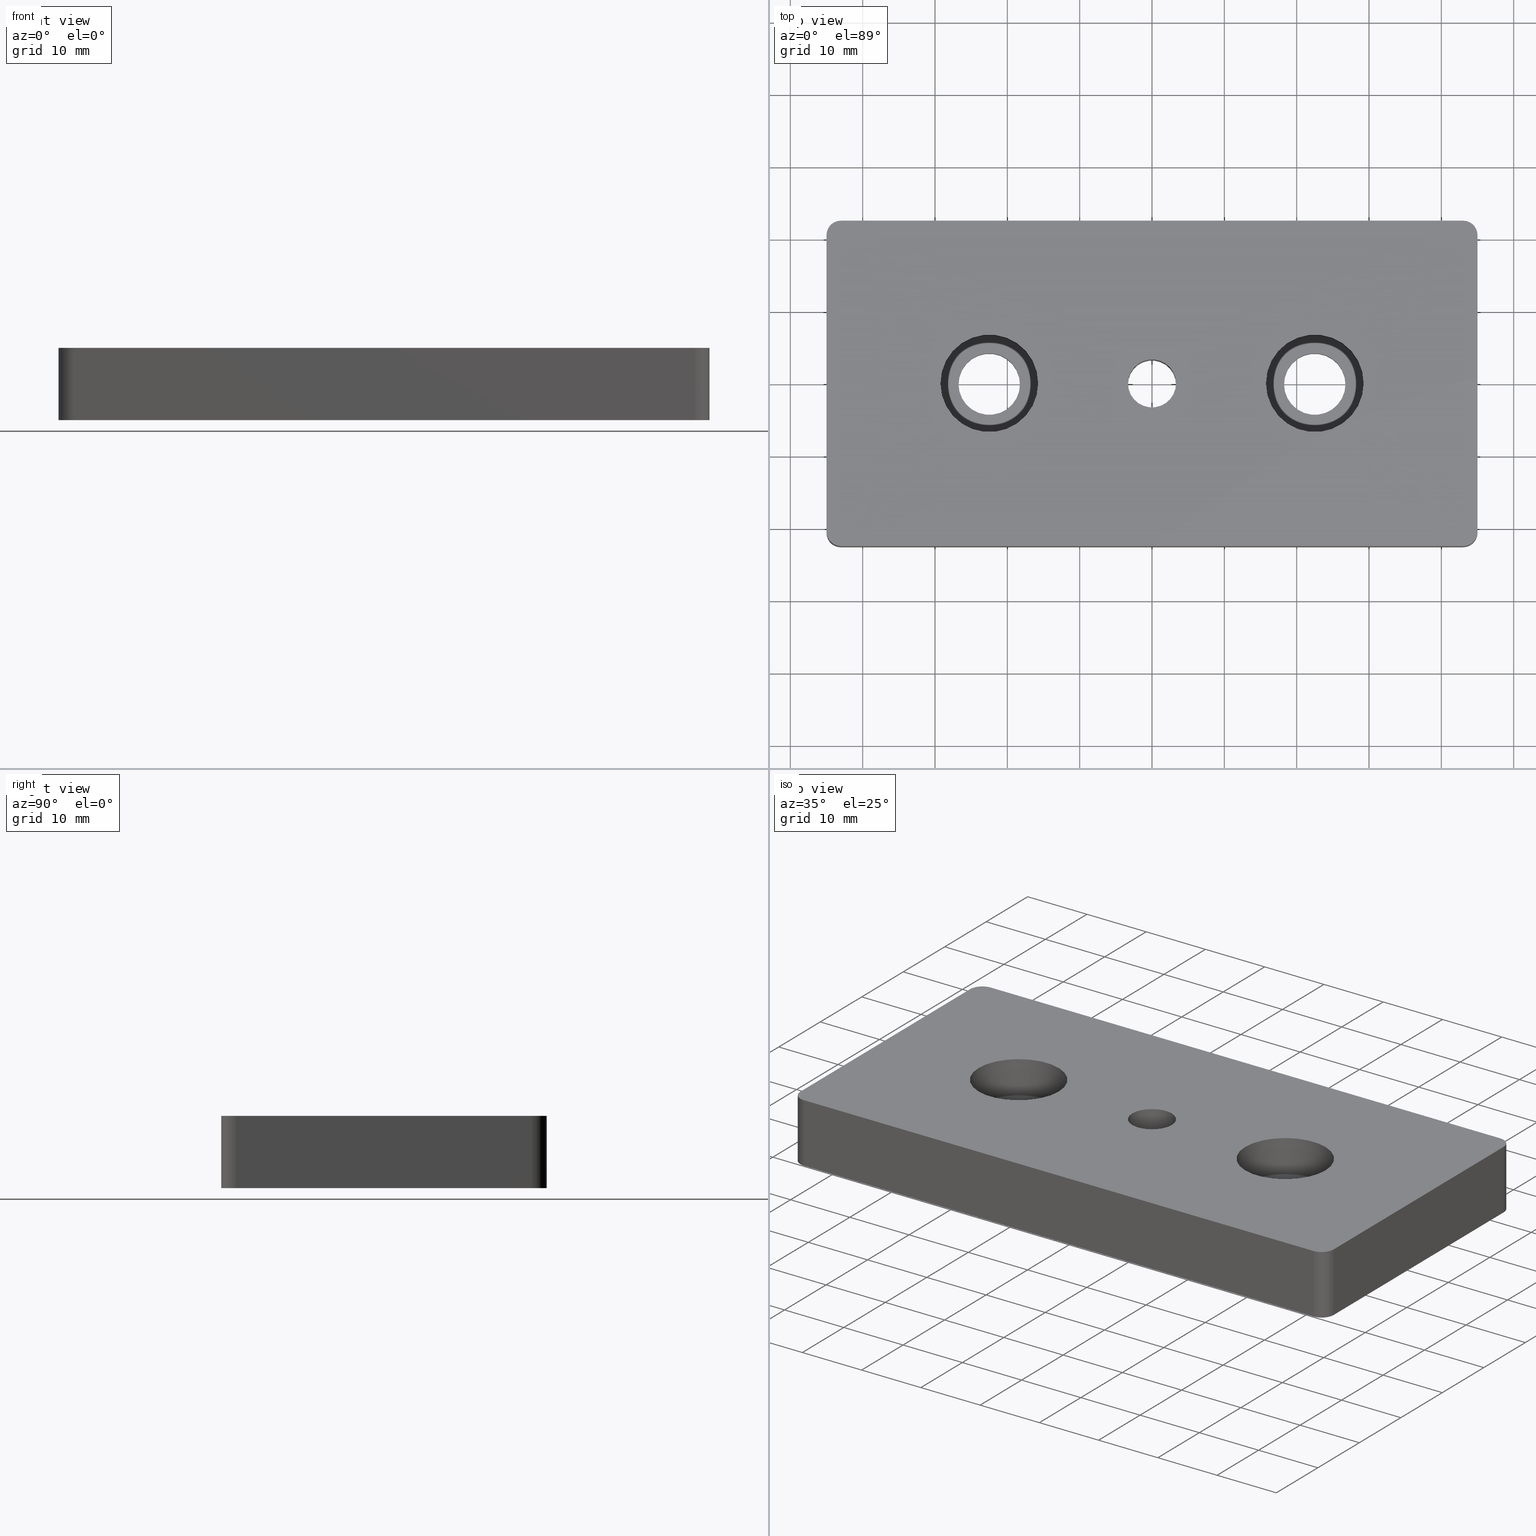
[diagram: canonical four-view strip — front | top / right | iso, engineering-drawing reading convention]
A machine part, canonical four-view strip (front | top / right | iso — engineering-drawing reading convention). The complete STEP part file that produces these views, byte-faithful:
ISO-10303-21;
HEADER;
/* Generated by software containing ST-Developer
 * from STEP Tools, Inc. (www.steptools.com) 
 */

FILE_DESCRIPTION(
/* description */ ('PIASTRA FISS. PIEDI M8 45X90'),
/* implementation_level */ '2;1');

FILE_NAME(
/* name */ 
'Q:\\Catalogo\\2_Accessori Dierre\\Per Download Web e catalogo cartace
o\\CATALOGO PIEDI E SOSTEGNI\\PAGINA 45\\DPSXX0001722.stp',
/* time_stamp */ '2018-11-09T11:26:52+01:00',
/* author */ ('fzagni'),
/* organization */ (''),
/* preprocessor_version */ 'ST-DEVELOPER v16.1',
/* originating_system */ 'Autodesk Inventor 2016',
/* authorisation */ '');

FILE_SCHEMA (('AUTOMOTIVE_DESIGN { 1 0 10303 214 3 1 1 }'));
ENDSEC;

DATA;
#10=MECHANICAL_DESIGN_GEOMETRIC_PRESENTATION_REPRESENTATION('',(#14,#15),
#494);
#11=SHAPE_REPRESENTATION_RELATIONSHIP('SRR','None',#503,#12);
#12=ADVANCED_BREP_SHAPE_REPRESENTATION('',(#13),#493);
#13=MANIFOLD_SOLID_BREP('Solido1',#288);
#14=STYLED_ITEM('',(#513),#287);
#15=STYLED_ITEM('',(#512),#13);
#16=LINE('',#446,#32);
#17=LINE('',#449,#33);
#18=LINE('',#452,#34);
#19=LINE('',#456,#35);
#20=LINE('',#460,#36);
#21=LINE('',#463,#37);
#22=LINE('',#466,#38);
#23=LINE('',#467,#39);
#24=LINE('',#471,#40);
#25=LINE('',#476,#41);
#26=LINE('',#477,#42);
#27=LINE('',#480,#43);
#28=LINE('',#481,#44);
#29=LINE('',#485,#45);
#30=LINE('',#487,#46);
#31=LINE('',#489,#47);
#32=VECTOR('',#365,10.);
#33=VECTOR('',#368,10.);
#34=VECTOR('',#371,41.);
#35=VECTOR('',#374,86.);
#36=VECTOR('',#377,41.);
#37=VECTOR('',#380,86.);
#38=VECTOR('',#383,41.);
#39=VECTOR('',#384,10.);
#40=VECTOR('',#389,10.);
#41=VECTOR('',#394,10.);
#42=VECTOR('',#395,10.);
#43=VECTOR('',#398,10.);
#44=VECTOR('',#399,41.);
#45=VECTOR('',#404,10.);
#46=VECTOR('',#407,86.);
#47=VECTOR('',#410,86.);
#48=PLANE('',#293);
#49=PLANE('',#300);
#50=PLANE('',#310);
#51=PLANE('',#314);
#52=PLANE('',#319);
#53=PLANE('',#322);
#54=PLANE('',#323);
#55=PLANE('',#324);
#56=FACE_BOUND('',#87,.T.);
#57=FACE_BOUND('',#89,.T.);
#58=FACE_BOUND('',#91,.T.);
#59=FACE_BOUND('',#93,.T.);
#60=FACE_BOUND('',#95,.T.);
#61=FACE_BOUND('',#97,.T.);
#62=FACE_BOUND('',#99,.T.);
#63=FACE_BOUND('',#102,.T.);
#64=FACE_BOUND('',#103,.T.);
#65=FACE_BOUND('',#104,.T.);
#66=FACE_BOUND('',#113,.T.);
#67=FACE_BOUND('',#114,.T.);
#68=FACE_BOUND('',#115,.T.);
#69=FACE_OUTER_BOUND('',#86,.T.);
#70=FACE_OUTER_BOUND('',#88,.T.);
#71=FACE_OUTER_BOUND('',#90,.T.);
#72=FACE_OUTER_BOUND('',#92,.T.);
#73=FACE_OUTER_BOUND('',#94,.T.);
#74=FACE_OUTER_BOUND('',#96,.T.);
#75=FACE_OUTER_BOUND('',#98,.T.);
#76=FACE_OUTER_BOUND('',#100,.T.);
#77=FACE_OUTER_BOUND('',#101,.T.);
#78=FACE_OUTER_BOUND('',#105,.T.);
#79=FACE_OUTER_BOUND('',#106,.T.);
#80=FACE_OUTER_BOUND('',#107,.T.);
#81=FACE_OUTER_BOUND('',#108,.T.);
#82=FACE_OUTER_BOUND('',#109,.T.);
#83=FACE_OUTER_BOUND('',#110,.T.);
#84=FACE_OUTER_BOUND('',#111,.T.);
#85=FACE_OUTER_BOUND('',#112,.T.);
#86=EDGE_LOOP('',(#194));
#87=EDGE_LOOP('',(#195));
#88=EDGE_LOOP('',(#196));
#89=EDGE_LOOP('',(#197));
#90=EDGE_LOOP('',(#198));
#91=EDGE_LOOP('',(#199));
#92=EDGE_LOOP('',(#200));
#93=EDGE_LOOP('',(#201));
#94=EDGE_LOOP('',(#202));
#95=EDGE_LOOP('',(#203));
#96=EDGE_LOOP('',(#204));
#97=EDGE_LOOP('',(#205));
#98=EDGE_LOOP('',(#206));
#99=EDGE_LOOP('',(#207));
#100=EDGE_LOOP('',(#208,#209,#210,#211));
#101=EDGE_LOOP('',(#212,#213,#214,#215,#216,#217,#218,#219));
#102=EDGE_LOOP('',(#220));
#103=EDGE_LOOP('',(#221));
#104=EDGE_LOOP('',(#222));
#105=EDGE_LOOP('',(#223,#224,#225,#226));
#106=EDGE_LOOP('',(#227,#228,#229,#230));
#107=EDGE_LOOP('',(#231,#232,#233,#234));
#108=EDGE_LOOP('',(#235,#236,#237,#238));
#109=EDGE_LOOP('',(#239,#240,#241,#242));
#110=EDGE_LOOP('',(#243,#244,#245,#246));
#111=EDGE_LOOP('',(#247,#248,#249,#250));
#112=EDGE_LOOP('',(#251,#252,#253,#254,#255,#256,#257,#258));
#113=EDGE_LOOP('',(#259));
#114=EDGE_LOOP('',(#260));
#115=EDGE_LOOP('',(#261));
#116=CIRCLE('',#291,3.3235);
#117=CIRCLE('',#292,3.3235);
#118=CIRCLE('',#294,6.75);
#119=CIRCLE('',#295,4.25);
#120=CIRCLE('',#297,6.75);
#121=CIRCLE('',#299,4.25);
#122=CIRCLE('',#301,6.75);
#123=CIRCLE('',#302,4.25);
#124=CIRCLE('',#304,6.75);
#125=CIRCLE('',#306,4.25);
#126=CIRCLE('',#308,2.);
#127=CIRCLE('',#309,2.);
#128=CIRCLE('',#311,2.);
#129=CIRCLE('',#312,2.);
#130=CIRCLE('',#313,2.);
#131=CIRCLE('',#316,2.);
#132=CIRCLE('',#318,2.);
#133=CIRCLE('',#321,2.);
#134=VERTEX_POINT('',#415);
#135=VERTEX_POINT('',#417);
#136=VERTEX_POINT('',#420);
#137=VERTEX_POINT('',#422);
#138=VERTEX_POINT('',#425);
#139=VERTEX_POINT('',#428);
#140=VERTEX_POINT('',#431);
#141=VERTEX_POINT('',#433);
#142=VERTEX_POINT('',#436);
#143=VERTEX_POINT('',#439);
#144=VERTEX_POINT('',#442);
#145=VERTEX_POINT('',#443);
#146=VERTEX_POINT('',#445);
#147=VERTEX_POINT('',#447);
#148=VERTEX_POINT('',#451);
#149=VERTEX_POINT('',#453);
#150=VERTEX_POINT('',#455);
#151=VERTEX_POINT('',#457);
#152=VERTEX_POINT('',#459);
#153=VERTEX_POINT('',#461);
#154=VERTEX_POINT('',#465);
#155=VERTEX_POINT('',#469);
#156=VERTEX_POINT('',#473);
#157=VERTEX_POINT('',#474);
#158=VERTEX_POINT('',#479);
#159=VERTEX_POINT('',#483);
#160=EDGE_CURVE('',#134,#134,#116,.T.);
#161=EDGE_CURVE('',#135,#135,#117,.T.);
#162=EDGE_CURVE('',#136,#136,#118,.T.);
#163=EDGE_CURVE('',#137,#137,#119,.T.);
#164=EDGE_CURVE('',#138,#138,#120,.T.);
#165=EDGE_CURVE('',#139,#139,#121,.T.);
#166=EDGE_CURVE('',#140,#140,#122,.T.);
#167=EDGE_CURVE('',#141,#141,#123,.T.);
#168=EDGE_CURVE('',#142,#142,#124,.T.);
#169=EDGE_CURVE('',#143,#143,#125,.T.);
#170=EDGE_CURVE('',#144,#145,#126,.T.);
#171=EDGE_CURVE('',#145,#146,#16,.T.);
#172=EDGE_CURVE('',#146,#147,#127,.T.);
#173=EDGE_CURVE('',#147,#144,#17,.T.);
#174=EDGE_CURVE('',#146,#148,#18,.T.);
#175=EDGE_CURVE('',#149,#148,#128,.T.);
#176=EDGE_CURVE('',#149,#150,#19,.T.);
#177=EDGE_CURVE('',#151,#150,#129,.T.);
#178=EDGE_CURVE('',#151,#152,#20,.T.);
#179=EDGE_CURVE('',#153,#152,#130,.T.);
#180=EDGE_CURVE('',#153,#147,#21,.T.);
#181=EDGE_CURVE('',#154,#145,#22,.T.);
#182=EDGE_CURVE('',#148,#154,#23,.T.);
#183=EDGE_CURVE('',#154,#155,#131,.T.);
#184=EDGE_CURVE('',#155,#149,#24,.T.);
#185=EDGE_CURVE('',#156,#157,#132,.T.);
#186=EDGE_CURVE('',#157,#153,#25,.T.);
#187=EDGE_CURVE('',#152,#156,#26,.T.);
#188=EDGE_CURVE('',#158,#151,#27,.T.);
#189=EDGE_CURVE('',#156,#158,#28,.T.);
#190=EDGE_CURVE('',#159,#158,#133,.T.);
#191=EDGE_CURVE('',#150,#159,#29,.T.);
#192=EDGE_CURVE('',#159,#155,#30,.T.);
#193=EDGE_CURVE('',#144,#157,#31,.T.);
#194=ORIENTED_EDGE('',*,*,#160,.F.);
#195=ORIENTED_EDGE('',*,*,#161,.F.);
#196=ORIENTED_EDGE('',*,*,#162,.T.);
#197=ORIENTED_EDGE('',*,*,#163,.F.);
#198=ORIENTED_EDGE('',*,*,#164,.F.);
#199=ORIENTED_EDGE('',*,*,#162,.F.);
#200=ORIENTED_EDGE('',*,*,#163,.T.);
#201=ORIENTED_EDGE('',*,*,#165,.F.);
#202=ORIENTED_EDGE('',*,*,#166,.T.);
#203=ORIENTED_EDGE('',*,*,#167,.F.);
#204=ORIENTED_EDGE('',*,*,#168,.F.);
#205=ORIENTED_EDGE('',*,*,#166,.F.);
#206=ORIENTED_EDGE('',*,*,#167,.T.);
#207=ORIENTED_EDGE('',*,*,#169,.F.);
#208=ORIENTED_EDGE('',*,*,#170,.T.);
#209=ORIENTED_EDGE('',*,*,#171,.T.);
#210=ORIENTED_EDGE('',*,*,#172,.T.);
#211=ORIENTED_EDGE('',*,*,#173,.T.);
#212=ORIENTED_EDGE('',*,*,#172,.F.);
#213=ORIENTED_EDGE('',*,*,#174,.T.);
#214=ORIENTED_EDGE('',*,*,#175,.F.);
#215=ORIENTED_EDGE('',*,*,#176,.T.);
#216=ORIENTED_EDGE('',*,*,#177,.F.);
#217=ORIENTED_EDGE('',*,*,#178,.T.);
#218=ORIENTED_EDGE('',*,*,#179,.F.);
#219=ORIENTED_EDGE('',*,*,#180,.T.);
#220=ORIENTED_EDGE('',*,*,#160,.T.);
#221=ORIENTED_EDGE('',*,*,#165,.T.);
#222=ORIENTED_EDGE('',*,*,#169,.T.);
#223=ORIENTED_EDGE('',*,*,#171,.F.);
#224=ORIENTED_EDGE('',*,*,#181,.F.);
#225=ORIENTED_EDGE('',*,*,#182,.F.);
#226=ORIENTED_EDGE('',*,*,#174,.F.);
#227=ORIENTED_EDGE('',*,*,#183,.T.);
#228=ORIENTED_EDGE('',*,*,#184,.T.);
#229=ORIENTED_EDGE('',*,*,#175,.T.);
#230=ORIENTED_EDGE('',*,*,#182,.T.);
#231=ORIENTED_EDGE('',*,*,#185,.T.);
#232=ORIENTED_EDGE('',*,*,#186,.T.);
#233=ORIENTED_EDGE('',*,*,#179,.T.);
#234=ORIENTED_EDGE('',*,*,#187,.T.);
#235=ORIENTED_EDGE('',*,*,#187,.F.);
#236=ORIENTED_EDGE('',*,*,#178,.F.);
#237=ORIENTED_EDGE('',*,*,#188,.F.);
#238=ORIENTED_EDGE('',*,*,#189,.F.);
#239=ORIENTED_EDGE('',*,*,#190,.T.);
#240=ORIENTED_EDGE('',*,*,#188,.T.);
#241=ORIENTED_EDGE('',*,*,#177,.T.);
#242=ORIENTED_EDGE('',*,*,#191,.T.);
#243=ORIENTED_EDGE('',*,*,#184,.F.);
#244=ORIENTED_EDGE('',*,*,#192,.F.);
#245=ORIENTED_EDGE('',*,*,#191,.F.);
#246=ORIENTED_EDGE('',*,*,#176,.F.);
#247=ORIENTED_EDGE('',*,*,#173,.F.);
#248=ORIENTED_EDGE('',*,*,#180,.F.);
#249=ORIENTED_EDGE('',*,*,#186,.F.);
#250=ORIENTED_EDGE('',*,*,#193,.F.);
#251=ORIENTED_EDGE('',*,*,#170,.F.);
#252=ORIENTED_EDGE('',*,*,#193,.T.);
#253=ORIENTED_EDGE('',*,*,#185,.F.);
#254=ORIENTED_EDGE('',*,*,#189,.T.);
#255=ORIENTED_EDGE('',*,*,#190,.F.);
#256=ORIENTED_EDGE('',*,*,#192,.T.);
#257=ORIENTED_EDGE('',*,*,#183,.F.);
#258=ORIENTED_EDGE('',*,*,#181,.T.);
#259=ORIENTED_EDGE('',*,*,#161,.T.);
#260=ORIENTED_EDGE('',*,*,#164,.T.);
#261=ORIENTED_EDGE('',*,*,#168,.T.);
#262=CYLINDRICAL_SURFACE('',#290,3.3235);
#263=CYLINDRICAL_SURFACE('',#296,6.75);
#264=CYLINDRICAL_SURFACE('',#298,4.25);
#265=CYLINDRICAL_SURFACE('',#303,6.75);
#266=CYLINDRICAL_SURFACE('',#305,4.25);
#267=CYLINDRICAL_SURFACE('',#307,2.);
#268=CYLINDRICAL_SURFACE('',#315,2.);
#269=CYLINDRICAL_SURFACE('',#317,2.);
#270=CYLINDRICAL_SURFACE('',#320,2.);
#271=ADVANCED_FACE('',(#69,#56),#262,.F.);
#272=ADVANCED_FACE('',(#70,#57),#48,.T.);
#273=ADVANCED_FACE('',(#71,#58),#263,.F.);
#274=ADVANCED_FACE('',(#72,#59),#264,.F.);
#275=ADVANCED_FACE('',(#73,#60),#49,.T.);
#276=ADVANCED_FACE('',(#74,#61),#265,.F.);
#277=ADVANCED_FACE('',(#75,#62),#266,.F.);
#278=ADVANCED_FACE('',(#76),#267,.T.);
#279=ADVANCED_FACE('',(#77,#63,#64,#65),#50,.F.);
#280=ADVANCED_FACE('',(#78),#51,.T.);
#281=ADVANCED_FACE('',(#79),#268,.T.);
#282=ADVANCED_FACE('',(#80),#269,.T.);
#283=ADVANCED_FACE('',(#81),#52,.T.);
#284=ADVANCED_FACE('',(#82),#270,.T.);
#285=ADVANCED_FACE('',(#83),#53,.T.);
#286=ADVANCED_FACE('',(#84),#54,.T.);
#287=ADVANCED_FACE('',(#85,#66,#67,#68),#55,.T.);
#288=CLOSED_SHELL('',(#271,#272,#273,#274,#275,#276,#277,#278,#279,#280,
#281,#282,#283,#284,#285,#286,#287));
#289=AXIS2_PLACEMENT_3D('placement',#413,#325,#326);
#290=AXIS2_PLACEMENT_3D('',#414,#327,#328);
#291=AXIS2_PLACEMENT_3D('',#416,#329,#330);
#292=AXIS2_PLACEMENT_3D('',#418,#331,#332);
#293=AXIS2_PLACEMENT_3D('',#419,#333,#334);
#294=AXIS2_PLACEMENT_3D('',#421,#335,#336);
#295=AXIS2_PLACEMENT_3D('',#423,#337,#338);
#296=AXIS2_PLACEMENT_3D('',#424,#339,#340);
#297=AXIS2_PLACEMENT_3D('',#426,#341,#342);
#298=AXIS2_PLACEMENT_3D('',#427,#343,#344);
#299=AXIS2_PLACEMENT_3D('',#429,#345,#346);
#300=AXIS2_PLACEMENT_3D('',#430,#347,#348);
#301=AXIS2_PLACEMENT_3D('',#432,#349,#350);
#302=AXIS2_PLACEMENT_3D('',#434,#351,#352);
#303=AXIS2_PLACEMENT_3D('',#435,#353,#354);
#304=AXIS2_PLACEMENT_3D('',#437,#355,#356);
#305=AXIS2_PLACEMENT_3D('',#438,#357,#358);
#306=AXIS2_PLACEMENT_3D('',#440,#359,#360);
#307=AXIS2_PLACEMENT_3D('',#441,#361,#362);
#308=AXIS2_PLACEMENT_3D('',#444,#363,#364);
#309=AXIS2_PLACEMENT_3D('',#448,#366,#367);
#310=AXIS2_PLACEMENT_3D('',#450,#369,#370);
#311=AXIS2_PLACEMENT_3D('',#454,#372,#373);
#312=AXIS2_PLACEMENT_3D('',#458,#375,#376);
#313=AXIS2_PLACEMENT_3D('',#462,#378,#379);
#314=AXIS2_PLACEMENT_3D('',#464,#381,#382);
#315=AXIS2_PLACEMENT_3D('',#468,#385,#386);
#316=AXIS2_PLACEMENT_3D('',#470,#387,#388);
#317=AXIS2_PLACEMENT_3D('',#472,#390,#391);
#318=AXIS2_PLACEMENT_3D('',#475,#392,#393);
#319=AXIS2_PLACEMENT_3D('',#478,#396,#397);
#320=AXIS2_PLACEMENT_3D('',#482,#400,#401);
#321=AXIS2_PLACEMENT_3D('',#484,#402,#403);
#322=AXIS2_PLACEMENT_3D('',#486,#405,#406);
#323=AXIS2_PLACEMENT_3D('',#488,#408,#409);
#324=AXIS2_PLACEMENT_3D('',#490,#411,#412);
#325=DIRECTION('axis',(0.,0.,1.));
#326=DIRECTION('refdir',(1.,0.,0.));
#327=DIRECTION('center_axis',(0.,0.,1.));
#328=DIRECTION('ref_axis',(1.,0.,0.));
#329=DIRECTION('center_axis',(0.,0.,1.));
#330=DIRECTION('ref_axis',(1.,0.,0.));
#331=DIRECTION('center_axis',(0.,0.,-1.));
#332=DIRECTION('ref_axis',(1.,0.,0.));
#333=DIRECTION('center_axis',(0.,0.,1.));
#334=DIRECTION('ref_axis',(1.,0.,0.));
#335=DIRECTION('center_axis',(0.,0.,1.));
#336=DIRECTION('ref_axis',(1.,0.,0.));
#337=DIRECTION('center_axis',(0.,0.,1.));
#338=DIRECTION('ref_axis',(1.,0.,0.));
#339=DIRECTION('center_axis',(0.,0.,1.));
#340=DIRECTION('ref_axis',(1.,0.,0.));
#341=DIRECTION('center_axis',(0.,0.,-1.));
#342=DIRECTION('ref_axis',(1.,0.,0.));
#343=DIRECTION('center_axis',(0.,0.,1.));
#344=DIRECTION('ref_axis',(1.,0.,0.));
#345=DIRECTION('center_axis',(0.,0.,1.));
#346=DIRECTION('ref_axis',(1.,0.,0.));
#347=DIRECTION('center_axis',(0.,0.,1.));
#348=DIRECTION('ref_axis',(1.,0.,0.));
#349=DIRECTION('center_axis',(0.,0.,1.));
#350=DIRECTION('ref_axis',(1.,0.,0.));
#351=DIRECTION('center_axis',(0.,0.,1.));
#352=DIRECTION('ref_axis',(1.,0.,0.));
#353=DIRECTION('center_axis',(0.,0.,1.));
#354=DIRECTION('ref_axis',(1.,0.,0.));
#355=DIRECTION('center_axis',(0.,0.,-1.));
#356=DIRECTION('ref_axis',(1.,0.,0.));
#357=DIRECTION('center_axis',(0.,0.,1.));
#358=DIRECTION('ref_axis',(1.,0.,0.));
#359=DIRECTION('center_axis',(0.,0.,1.));
#360=DIRECTION('ref_axis',(1.,0.,0.));
#361=DIRECTION('center_axis',(0.,0.,1.));
#362=DIRECTION('ref_axis',(-0.707106781186546,-0.707106781186549,0.));
#363=DIRECTION('center_axis',(0.,0.,-1.));
#364=DIRECTION('ref_axis',(-0.707106781186546,-0.707106781186549,0.));
#365=DIRECTION('',(0.,0.,-1.));
#366=DIRECTION('center_axis',(0.,0.,1.));
#367=DIRECTION('ref_axis',(-0.707106781186546,-0.707106781186549,0.));
#368=DIRECTION('',(0.,0.,1.));
#369=DIRECTION('center_axis',(0.,0.,1.));
#370=DIRECTION('ref_axis',(1.,0.,0.));
#371=DIRECTION('',(0.,1.,0.));
#372=DIRECTION('center_axis',(0.,0.,1.));
#373=DIRECTION('ref_axis',(-0.707106781186546,0.707106781186549,0.));
#374=DIRECTION('',(1.,0.,0.));
#375=DIRECTION('center_axis',(0.,0.,1.));
#376=DIRECTION('ref_axis',(0.707106781186546,0.707106781186549,0.));
#377=DIRECTION('',(0.,-1.,0.));
#378=DIRECTION('center_axis',(0.,0.,1.));
#379=DIRECTION('ref_axis',(0.707106781186546,-0.707106781186549,0.));
#380=DIRECTION('',(-1.,0.,0.));
#381=DIRECTION('center_axis',(-1.,0.,0.));
#382=DIRECTION('ref_axis',(0.,-1.,0.));
#383=DIRECTION('',(0.,-1.,0.));
#384=DIRECTION('',(0.,0.,1.));
#385=DIRECTION('center_axis',(0.,0.,1.));
#386=DIRECTION('ref_axis',(-0.707106781186546,0.707106781186549,0.));
#387=DIRECTION('center_axis',(0.,0.,-1.));
#388=DIRECTION('ref_axis',(-0.707106781186546,0.707106781186549,0.));
#389=DIRECTION('',(0.,0.,-1.));
#390=DIRECTION('center_axis',(0.,0.,1.));
#391=DIRECTION('ref_axis',(0.707106781186546,-0.707106781186549,0.));
#392=DIRECTION('center_axis',(0.,0.,-1.));
#393=DIRECTION('ref_axis',(0.707106781186546,-0.707106781186549,0.));
#394=DIRECTION('',(0.,0.,-1.));
#395=DIRECTION('',(0.,0.,1.));
#396=DIRECTION('center_axis',(1.,0.,0.));
#397=DIRECTION('ref_axis',(0.,1.,0.));
#398=DIRECTION('',(0.,0.,-1.));
#399=DIRECTION('',(0.,1.,0.));
#400=DIRECTION('center_axis',(0.,0.,1.));
#401=DIRECTION('ref_axis',(0.707106781186546,0.707106781186549,0.));
#402=DIRECTION('center_axis',(0.,0.,-1.));
#403=DIRECTION('ref_axis',(0.707106781186546,0.707106781186549,0.));
#404=DIRECTION('',(0.,0.,1.));
#405=DIRECTION('center_axis',(0.,1.,0.));
#406=DIRECTION('ref_axis',(-1.,0.,0.));
#407=DIRECTION('',(-1.,0.,0.));
#408=DIRECTION('center_axis',(0.,-1.,0.));
#409=DIRECTION('ref_axis',(1.,0.,0.));
#410=DIRECTION('',(1.,0.,0.));
#411=DIRECTION('center_axis',(0.,0.,1.));
#412=DIRECTION('ref_axis',(1.,0.,0.));
#413=CARTESIAN_POINT('',(0.,0.,0.));
#414=CARTESIAN_POINT('Origin',(0.,0.,-91.1187420807834));
#415=CARTESIAN_POINT('',(-3.3235,-4.07011363696623E-16,0.));
#416=CARTESIAN_POINT('Origin',(0.,0.,0.));
#417=CARTESIAN_POINT('',(3.3235,0.,10.));
#418=CARTESIAN_POINT('Origin',(0.,0.,10.));
#419=CARTESIAN_POINT('Origin',(-22.5,0.,4.5));
#420=CARTESIAN_POINT('',(-15.75,0.,4.5));
#421=CARTESIAN_POINT('Origin',(-22.5,0.,4.5));
#422=CARTESIAN_POINT('',(-26.75,-5.20474889637625E-16,4.5));
#423=CARTESIAN_POINT('Origin',(-22.5,0.,4.5));
#424=CARTESIAN_POINT('Origin',(-22.5,0.,7.25));
#425=CARTESIAN_POINT('',(-15.75,0.,10.));
#426=CARTESIAN_POINT('Origin',(-22.5,0.,10.));
#427=CARTESIAN_POINT('Origin',(-22.5,0.,5.));
#428=CARTESIAN_POINT('',(-18.25,0.,0.));
#429=CARTESIAN_POINT('Origin',(-22.5,0.,0.));
#430=CARTESIAN_POINT('Origin',(22.5,0.,4.5));
#431=CARTESIAN_POINT('',(29.25,0.,4.5));
#432=CARTESIAN_POINT('Origin',(22.5,0.,4.5));
#433=CARTESIAN_POINT('',(18.25,-5.20474889637625E-16,4.5));
#434=CARTESIAN_POINT('Origin',(22.5,0.,4.5));
#435=CARTESIAN_POINT('Origin',(22.5,0.,7.25));
#436=CARTESIAN_POINT('',(29.25,0.,10.));
#437=CARTESIAN_POINT('Origin',(22.5,0.,10.));
#438=CARTESIAN_POINT('Origin',(22.5,0.,5.));
#439=CARTESIAN_POINT('',(26.75,0.,0.));
#440=CARTESIAN_POINT('Origin',(22.5,0.,0.));
#441=CARTESIAN_POINT('Origin',(-43.,-20.5,0.));
#442=CARTESIAN_POINT('',(-43.,-22.5,10.));
#443=CARTESIAN_POINT('',(-45.,-20.5,10.));
#444=CARTESIAN_POINT('Origin',(-43.,-20.5,10.));
#445=CARTESIAN_POINT('',(-45.,-20.5,0.));
#446=CARTESIAN_POINT('',(-45.,-20.5,0.));
#447=CARTESIAN_POINT('',(-43.,-22.5,0.));
#448=CARTESIAN_POINT('Origin',(-43.,-20.5,0.));
#449=CARTESIAN_POINT('',(-43.,-22.5,0.));
#450=CARTESIAN_POINT('Origin',(0.,0.,0.));
#451=CARTESIAN_POINT('',(-45.,20.5,0.));
#452=CARTESIAN_POINT('',(-45.,-22.5,0.));
#453=CARTESIAN_POINT('',(-43.,22.5,0.));
#454=CARTESIAN_POINT('Origin',(-43.,20.5,0.));
#455=CARTESIAN_POINT('',(43.,22.5,0.));
#456=CARTESIAN_POINT('',(-45.,22.5,0.));
#457=CARTESIAN_POINT('',(45.,20.5,0.));
#458=CARTESIAN_POINT('Origin',(43.,20.5,0.));
#459=CARTESIAN_POINT('',(45.,-20.5,0.));
#460=CARTESIAN_POINT('',(45.,22.5,0.));
#461=CARTESIAN_POINT('',(43.,-22.5,0.));
#462=CARTESIAN_POINT('Origin',(43.,-20.5,0.));
#463=CARTESIAN_POINT('',(45.,-22.5,0.));
#464=CARTESIAN_POINT('Origin',(-45.,22.5,0.));
#465=CARTESIAN_POINT('',(-45.,20.5,10.));
#466=CARTESIAN_POINT('',(-45.,-22.5,10.));
#467=CARTESIAN_POINT('',(-45.,20.5,0.));
#468=CARTESIAN_POINT('Origin',(-43.,20.5,0.));
#469=CARTESIAN_POINT('',(-43.,22.5,10.));
#470=CARTESIAN_POINT('Origin',(-43.,20.5,10.));
#471=CARTESIAN_POINT('',(-43.,22.5,0.));
#472=CARTESIAN_POINT('Origin',(43.,-20.5,0.));
#473=CARTESIAN_POINT('',(45.,-20.5,10.));
#474=CARTESIAN_POINT('',(43.,-22.5,10.));
#475=CARTESIAN_POINT('Origin',(43.,-20.5,10.));
#476=CARTESIAN_POINT('',(43.,-22.5,0.));
#477=CARTESIAN_POINT('',(45.,-20.5,0.));
#478=CARTESIAN_POINT('Origin',(45.,-22.5,0.));
#479=CARTESIAN_POINT('',(45.,20.5,10.));
#480=CARTESIAN_POINT('',(45.,20.5,0.));
#481=CARTESIAN_POINT('',(45.,22.5,10.));
#482=CARTESIAN_POINT('Origin',(43.,20.5,0.));
#483=CARTESIAN_POINT('',(43.,22.5,10.));
#484=CARTESIAN_POINT('Origin',(43.,20.5,10.));
#485=CARTESIAN_POINT('',(43.,22.5,0.));
#486=CARTESIAN_POINT('Origin',(45.,22.5,0.));
#487=CARTESIAN_POINT('',(-45.,22.5,10.));
#488=CARTESIAN_POINT('Origin',(-45.,-22.5,0.));
#489=CARTESIAN_POINT('',(45.,-22.5,10.));
#490=CARTESIAN_POINT('Origin',(0.,0.,10.));
#491=UNCERTAINTY_MEASURE_WITH_UNIT(LENGTH_MEASURE(0.01),#495,
'DISTANCE_ACCURACY_VALUE',
'Maximum model space distance between geometric entities at asserted c
onnectivities');
#492=UNCERTAINTY_MEASURE_WITH_UNIT(LENGTH_MEASURE(1.E-6),#495,
'DISTANCE_ACCURACY_VALUE',
'Maximum model space distance between geometric entities at asserted c
onnectivities');
#493=(
GEOMETRIC_REPRESENTATION_CONTEXT(3)
GLOBAL_UNCERTAINTY_ASSIGNED_CONTEXT((#491))
GLOBAL_UNIT_ASSIGNED_CONTEXT((#495,#498,#496))
REPRESENTATION_CONTEXT('','3D')
);
#494=(
GEOMETRIC_REPRESENTATION_CONTEXT(3)
GLOBAL_UNCERTAINTY_ASSIGNED_CONTEXT((#492))
GLOBAL_UNIT_ASSIGNED_CONTEXT((#495,#498,#496))
REPRESENTATION_CONTEXT('','3D')
);
#495=(
LENGTH_UNIT()
NAMED_UNIT(*)
SI_UNIT(.MILLI.,.METRE.)
);
#496=(
NAMED_UNIT(*)
SI_UNIT($,.STERADIAN.)
SOLID_ANGLE_UNIT()
);
#497=DIMENSIONAL_EXPONENTS(0.,0.,0.,0.,0.,0.,0.);
#498=(
CONVERSION_BASED_UNIT('degree',#500)
NAMED_UNIT(#497)
PLANE_ANGLE_UNIT()
);
#499=(
NAMED_UNIT(*)
PLANE_ANGLE_UNIT()
SI_UNIT($,.RADIAN.)
);
#500=PLANE_ANGLE_MEASURE_WITH_UNIT(PLANE_ANGLE_MEASURE(0.01745329252),#499);
#501=SHAPE_DEFINITION_REPRESENTATION(#502,#503);
#502=PRODUCT_DEFINITION_SHAPE('',$,#505);
#503=SHAPE_REPRESENTATION('',(#289),#493);
#504=PRODUCT_DEFINITION_CONTEXT('part definition',#509,'design');
#505=PRODUCT_DEFINITION('440000007444','440000007444',#506,#504);
#506=PRODUCT_DEFINITION_FORMATION('','A',#511);
#507=PRODUCT_RELATED_PRODUCT_CATEGORY('440000007444','440000007444',(#511));
#508=APPLICATION_PROTOCOL_DEFINITION('international standard',
'automotive_design',2009,#509);
#509=APPLICATION_CONTEXT(
'Core Data for Automotive Mechanical Design Process');
#510=PRODUCT_CONTEXT('part definition',#509,'mechanical');
#511=PRODUCT('440000007444','440000007444',$,(#510));
#512=PRESENTATION_STYLE_ASSIGNMENT((#514));
#513=PRESENTATION_STYLE_ASSIGNMENT((#515));
#514=SURFACE_STYLE_USAGE(.BOTH.,#516);
#515=SURFACE_STYLE_USAGE(.BOTH.,#517);
#516=SURFACE_SIDE_STYLE('',(#518));
#517=SURFACE_SIDE_STYLE('',(#519));
#518=SURFACE_STYLE_FILL_AREA(#520);
#519=SURFACE_STYLE_FILL_AREA(#521);
#520=FILL_AREA_STYLE('',(#522));
#521=FILL_AREA_STYLE('',(#523));
#522=FILL_AREA_STYLE_COLOUR('',#524);
#523=FILL_AREA_STYLE_COLOUR('',#525);
#524=COLOUR_RGB('',0.811764705882353,0.8,0.823529411764706);
#525=COLOUR_RGB('',0.725490196078431,0.725490196078431,0.725490196078431);
ENDSEC;
END-ISO-10303-21;
